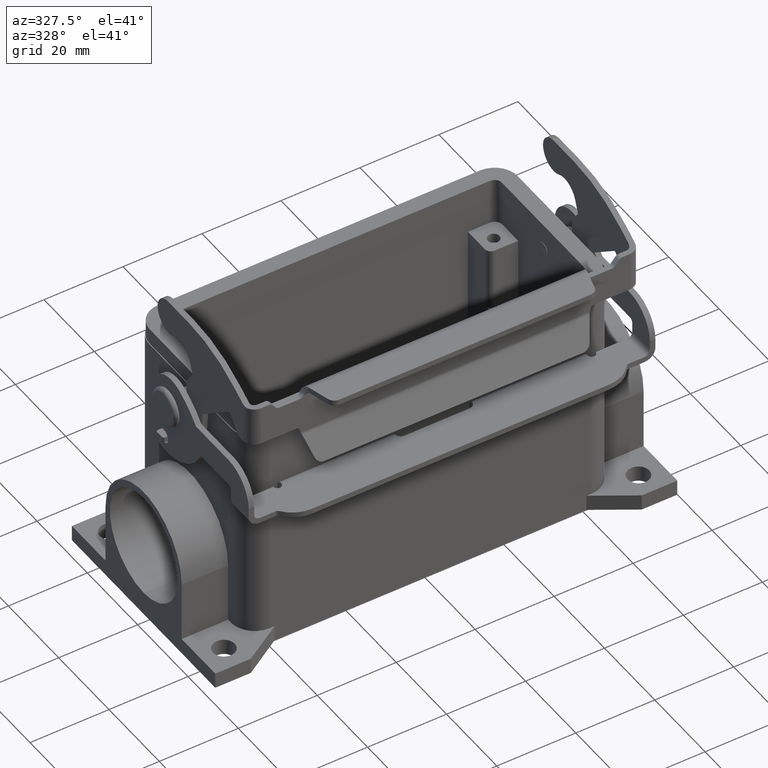
[diagram: clean part render]
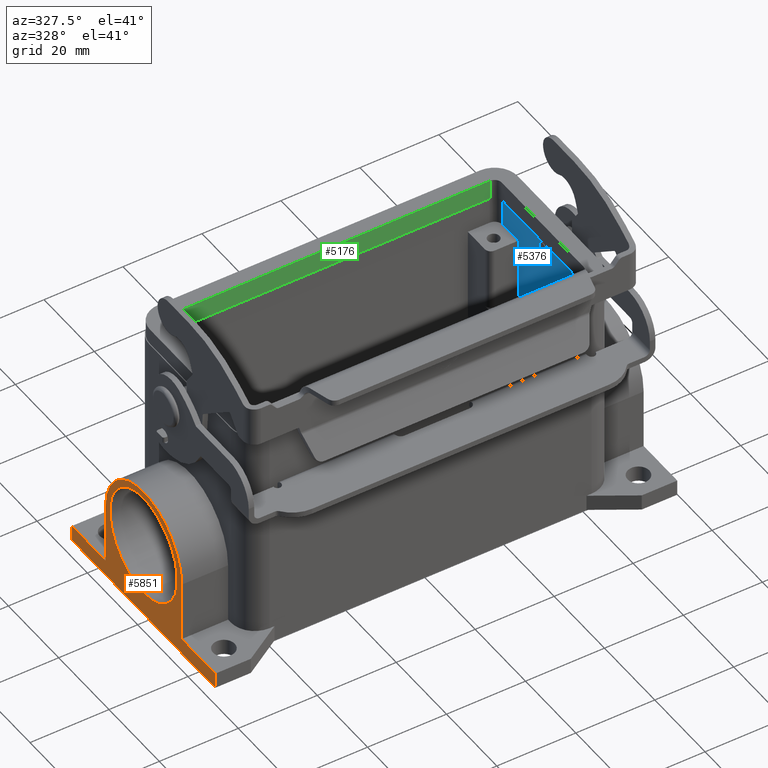
[diagram: same view with three faces highlighted in distinct colors, each labeled with its STEP entity id]
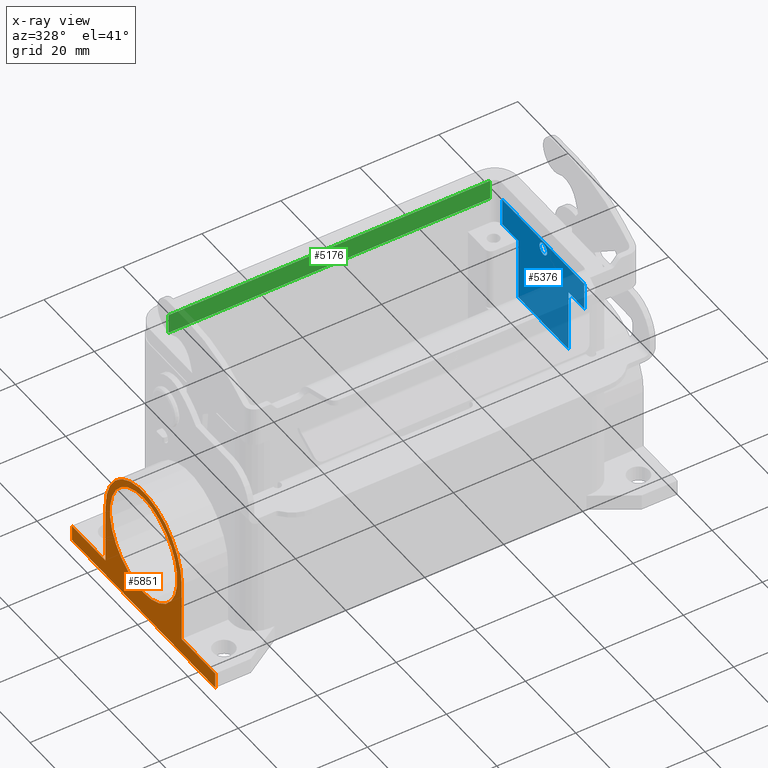
[diagram: x-ray of the same camera — body ghosted, the three highlighted faces saturated]
A machine part, auxiliary view with three faces highlighted in distinct colors.
The next image is the same camera in x-ray (body ghosted, the three faces saturated) — at least one of them is partly hidden behind the body in this view.
Their STEP definitions:

[orange] entity #5851 — the highlighted planar face has unit normal (-1, 0, 0).
#1890=CARTESIAN_POINT('',(-58.500000000000007,0.0,-23.219999999999970));
#1891=VERTEX_POINT('',#1890);
#1907=CARTESIAN_POINT('',(-58.500000000000007,-1.639748E-015,-50.000000000000036));
#1908=VERTEX_POINT('',#1907);
#1915=CARTESIAN_POINT('',(-58.500000000000007,0.0,-36.610000000000007));
#1916=DIRECTION('',(1.0,0.0,0.0));
#1917=DIRECTION('',(0.0,0.0,1.0));
#1918=AXIS2_PLACEMENT_3D('',#1915,#1916,#1917);
#1919=CIRCLE('',#1918,13.390000000000031);
#1920=EDGE_CURVE('',#1891,#1908,#1919,.T.);
#2065=CARTESIAN_POINT('',(-58.500000000000007,0.0,-36.610000000000007));
#2066=DIRECTION('',(1.0,0.0,0.0));
#2067=DIRECTION('',(0.0,0.0,1.0));
#2068=AXIS2_PLACEMENT_3D('',#2065,#2066,#2067);
#2069=CIRCLE('',#2068,13.390000000000031);
#2070=EDGE_CURVE('',#1908,#1891,#2069,.T.);
#2262=CARTESIAN_POINT('',(-58.500000000000007,-15.140000000000001,-52.000000000000014));
#2263=VERTEX_POINT('',#2262);
#2278=CARTESIAN_POINT('',(-58.500000000000007,-15.139999999999997,-36.610000000000007));
#2279=VERTEX_POINT('',#2278);
#2286=CARTESIAN_POINT('',(-58.500000000000007,-15.139999999999997,-36.610000000000007));
#2287=DIRECTION('',(0.0,0.0,-1.0));
#2288=VECTOR('',#2287,15.390000000000008);
#2289=LINE('',#2286,#2288);
#2290=EDGE_CURVE('',#2279,#2263,#2289,.T.);
#2330=CARTESIAN_POINT('',(-58.500000000000007,15.140000000000002,-36.609999999999999));
#2331=VERTEX_POINT('',#2330);
#2338=CARTESIAN_POINT('',(-58.500000000000007,1.126356E-015,-36.610000000000007));
#2339=DIRECTION('',(1.0,0.0,0.0));
#2340=DIRECTION('',(0.0,1.0,0.0));
#2341=AXIS2_PLACEMENT_3D('',#2338,#2339,#2340);
#2342=CIRCLE('',#2341,15.140000000000002);
#2343=EDGE_CURVE('',#2331,#2279,#2342,.T.);
#2354=CARTESIAN_POINT('',(-58.500000000000007,15.140000000000008,-52.000000000000014));
#2355=VERTEX_POINT('',#2354);
#2364=CARTESIAN_POINT('',(-58.500000000000007,15.140000000000008,-52.000000000000014));
#2365=DIRECTION('',(0.0,0.0,1.0));
#2366=VECTOR('',#2365,15.390000000000015);
#2367=LINE('',#2364,#2366);
#2368=EDGE_CURVE('',#2355,#2331,#2367,.T.);
#2385=CARTESIAN_POINT('',(-58.500000000000007,-28.500000000000000,-56.000000000000007));
#2386=VERTEX_POINT('',#2385);
#2387=CARTESIAN_POINT('',(-58.500000000000007,28.500000000000000,-56.000000000000007));
#2388=VERTEX_POINT('',#2387);
#2389=CARTESIAN_POINT('',(-58.500000000000007,-28.500000000000000,-56.000000000000007));
#2390=DIRECTION('',(0.0,1.0,0.0));
#2391=VECTOR('',#2390,57.0);
#2392=LINE('',#2389,#2391);
#2393=EDGE_CURVE('',#2386,#2388,#2392,.T.);
#2563=CARTESIAN_POINT('',(-58.500000000000007,28.500000000000000,-52.000000000000014));
#2564=VERTEX_POINT('',#2563);
#2571=CARTESIAN_POINT('',(-58.500000000000007,15.140000000000008,-52.000000000000014));
#2572=DIRECTION('',(0.0,1.0,0.0));
#2573=VECTOR('',#2572,13.359999999999992);
#2574=LINE('',#2571,#2573);
#2575=EDGE_CURVE('',#2355,#2564,#2574,.T.);
#2596=CARTESIAN_POINT('',(-58.500000000000007,-28.500000000000000,-52.000000000000014));
#2597=VERTEX_POINT('',#2596);
#2598=CARTESIAN_POINT('',(-58.500000000000007,-28.500000000000000,-52.000000000000014));
#2599=DIRECTION('',(0.0,1.0,0.0));
#2600=VECTOR('',#2599,13.359999999999999);
#2601=LINE('',#2598,#2600);
#2602=EDGE_CURVE('',#2597,#2263,#2601,.T.);
#5667=CARTESIAN_POINT('',(-58.500000000000007,28.500000000000000,-56.000000000000007));
#5668=DIRECTION('',(0.0,0.0,1.0));
#5669=VECTOR('',#5668,3.999999999999993);
#5670=LINE('',#5667,#5669);
#5671=EDGE_CURVE('',#2388,#2564,#5670,.T.);
#5821=CARTESIAN_POINT('',(-58.500000000000007,-28.500000000000000,-56.000000000000007));
#5822=DIRECTION('',(0.0,0.0,1.0));
#5823=VECTOR('',#5822,3.999999999999993);
#5824=LINE('',#5821,#5823);
#5825=EDGE_CURVE('',#2386,#2597,#5824,.T.);
#5832=CARTESIAN_POINT('',(-58.500000000000007,-28.500000000000000,-56.000000000000007));
#5833=DIRECTION('',(-1.0,0.0,0.0));
#5834=DIRECTION('',(0.0,0.0,1.0));
#5835=AXIS2_PLACEMENT_3D('',#5832,#5833,#5834);
#5836=PLANE('',#5835);
#5837=ORIENTED_EDGE('',*,*,#2393,.F.);
#5838=ORIENTED_EDGE('',*,*,#5825,.T.);
#5839=ORIENTED_EDGE('',*,*,#2602,.T.);
#5840=ORIENTED_EDGE('',*,*,#2290,.F.);
#5841=ORIENTED_EDGE('',*,*,#2343,.F.);
#5842=ORIENTED_EDGE('',*,*,#2368,.F.);
#5843=ORIENTED_EDGE('',*,*,#2575,.T.);
#5844=ORIENTED_EDGE('',*,*,#5671,.F.);
#5845=EDGE_LOOP('',(#5837,#5838,#5839,#5840,#5841,#5842,#5843,#5844));
#5846=FACE_OUTER_BOUND('',#5845,.T.);
#5847=ORIENTED_EDGE('',*,*,#1920,.T.);
#5848=ORIENTED_EDGE('',*,*,#2070,.T.);
#5849=EDGE_LOOP('',(#5847,#5848));
#5850=FACE_BOUND('',#5849,.T.);
#5851=ADVANCED_FACE('',(#5846,#5850),#5836,.T.);

[blue] entity #5376 — the highlighted planar face has unit normal (1, 0, 0).
#767=CARTESIAN_POINT('',(42.750000000000014,-1.836910E-016,-1.500000000000020));
#768=VERTEX_POINT('',#767);
#784=CARTESIAN_POINT('',(42.750000000000014,-1.836910E-016,1.499999999999985));
#785=VERTEX_POINT('',#784);
#792=CARTESIAN_POINT('',(42.750000000000014,0.0,-1.752430E-014));
#793=DIRECTION('',(1.0,0.0,0.0));
#794=DIRECTION('',(0.0,0.0,-1.0));
#795=AXIS2_PLACEMENT_3D('',#792,#793,#794);
#796=CIRCLE('',#795,1.500000000000003);
#797=EDGE_CURVE('',#768,#785,#796,.T.);
#3077=CARTESIAN_POINT('',(42.750000000000000,-9.999999999999998,-21.000000000000007));
#3078=VERTEX_POINT('',#3077);
#3087=CARTESIAN_POINT('',(42.750000000000000,10.0,-21.000000000000007));
#3088=VERTEX_POINT('',#3087);
#3089=CARTESIAN_POINT('',(42.750000000000000,10.0,-21.000000000000007));
#3090=DIRECTION('',(0.0,-1.0,0.0));
#3091=VECTOR('',#3090,20.0);
#3092=LINE('',#3089,#3091);
#3093=EDGE_CURVE('',#3088,#3078,#3092,.T.);
#3278=CARTESIAN_POINT('',(42.750000000000014,-9.999999999999998,-5.0));
#3279=VERTEX_POINT('',#3278);
#3286=CARTESIAN_POINT('',(42.750000000000000,-9.999999999999998,-21.000000000000007));
#3287=DIRECTION('',(0.0,0.0,1.0));
#3288=VECTOR('',#3287,16.000000000000007);
#3289=LINE('',#3286,#3288);
#3290=EDGE_CURVE('',#3078,#3279,#3289,.T.);
#3789=CARTESIAN_POINT('',(42.750000000000014,-16.250000000000000,-5.0));
#3790=VERTEX_POINT('',#3789);
#3798=CARTESIAN_POINT('',(42.750000000000014,-9.999999999999998,-5.0));
#3799=DIRECTION('',(0.0,-1.0,0.0));
#3800=VECTOR('',#3799,6.250000000000002);
#3801=LINE('',#3798,#3800);
#3802=EDGE_CURVE('',#3279,#3790,#3801,.T.);
#3957=CARTESIAN_POINT('',(42.750000000000014,10.0,-5.0));
#3958=VERTEX_POINT('',#3957);
#3959=CARTESIAN_POINT('',(42.750000000000014,10.0,-5.0));
#3960=DIRECTION('',(0.0,0.0,-1.0));
#3961=VECTOR('',#3960,16.000000000000007);
#3962=LINE('',#3959,#3961);
#3963=EDGE_CURVE('',#3958,#3088,#3962,.T.);
#4016=CARTESIAN_POINT('',(42.750000000000014,16.250000000000000,-5.0));
#4017=VERTEX_POINT('',#4016);
#4018=CARTESIAN_POINT('',(42.750000000000014,16.250000000000000,-5.0));
#4019=DIRECTION('',(0.0,-1.0,0.0));
#4020=VECTOR('',#4019,6.250000000000000);
#4021=LINE('',#4018,#4020);
#4022=EDGE_CURVE('',#4017,#3958,#4021,.T.);
#4102=CARTESIAN_POINT('',(42.750000000000014,16.250000000000000,2.000000000000002));
#4103=VERTEX_POINT('',#4102);
#4104=CARTESIAN_POINT('',(42.750000000000014,16.250000000000000,2.000000000000002));
#4105=DIRECTION('',(0.0,0.0,-1.0));
#4106=VECTOR('',#4105,7.000000000000002);
#4107=LINE('',#4104,#4106);
#4108=EDGE_CURVE('',#4103,#4017,#4107,.T.);
#4559=CARTESIAN_POINT('',(42.750000000000014,0.0,-1.752430E-014));
#4560=DIRECTION('',(1.0,0.0,0.0));
#4561=DIRECTION('',(0.0,0.0,-1.0));
#4562=AXIS2_PLACEMENT_3D('',#4559,#4560,#4561);
#4563=CIRCLE('',#4562,1.500000000000003);
#4564=EDGE_CURVE('',#785,#768,#4563,.T.);
#4892=CARTESIAN_POINT('',(42.750000000000014,-16.250000000000000,2.000000000000002));
#4893=VERTEX_POINT('',#4892);
#4894=CARTESIAN_POINT('',(42.750000000000014,-16.250000000000000,2.000000000000002));
#4895=DIRECTION('',(0.0,1.0,0.0));
#4896=VECTOR('',#4895,32.500000000000000);
#4897=LINE('',#4894,#4896);
#4898=EDGE_CURVE('',#4893,#4103,#4897,.T.);
#5348=CARTESIAN_POINT('',(42.750000000000014,-16.250000000000000,2.000000000000002));
#5349=DIRECTION('',(0.0,0.0,-1.0));
#5350=VECTOR('',#5349,7.000000000000002);
#5351=LINE('',#5348,#5350);
#5352=EDGE_CURVE('',#4893,#3790,#5351,.T.);
#5357=CARTESIAN_POINT('',(42.750000000000014,-16.250000000000000,7.000000000000002));
#5358=DIRECTION('',(1.0,0.0,0.0));
#5359=DIRECTION('',(0.0,0.0,-1.0));
#5360=AXIS2_PLACEMENT_3D('',#5357,#5358,#5359);
#5361=PLANE('',#5360);
#5362=ORIENTED_EDGE('',*,*,#3093,.T.);
#5363=ORIENTED_EDGE('',*,*,#3290,.T.);
#5364=ORIENTED_EDGE('',*,*,#3802,.T.);
#5365=ORIENTED_EDGE('',*,*,#5352,.F.);
#5366=ORIENTED_EDGE('',*,*,#4898,.T.);
#5367=ORIENTED_EDGE('',*,*,#4108,.T.);
#5368=ORIENTED_EDGE('',*,*,#4022,.T.);
#5369=ORIENTED_EDGE('',*,*,#3963,.T.);
#5370=EDGE_LOOP('',(#5362,#5363,#5364,#5365,#5366,#5367,#5368,#5369));
#5371=FACE_OUTER_BOUND('',#5370,.T.);
#5372=ORIENTED_EDGE('',*,*,#4564,.T.);
#5373=ORIENTED_EDGE('',*,*,#797,.T.);
#5374=EDGE_LOOP('',(#5372,#5373));
#5375=FACE_BOUND('',#5374,.T.);
#5376=ADVANCED_FACE('',(#5371,#5375),#5361,.F.);

[green] entity #5176 — the highlighted planar face has unit normal (0, 1, 0).
#4972=CARTESIAN_POINT('',(40.750000000000014,18.050000000000001,2.000000000000003));
#4973=VERTEX_POINT('',#4972);
#4981=CARTESIAN_POINT('',(-40.750000000000014,18.050000000000001,2.000000000000003));
#4982=VERTEX_POINT('',#4981);
#4983=CARTESIAN_POINT('',(40.750000000000014,18.050000000000001,2.000000000000003));
#4984=DIRECTION('',(-1.0,0.0,0.0));
#4985=VECTOR('',#4984,81.500000000000028);
#4986=LINE('',#4983,#4985);
#4987=EDGE_CURVE('',#4973,#4982,#4986,.T.);
#5135=CARTESIAN_POINT('',(40.750000000000014,18.050000000000001,7.000000000000002));
#5136=VERTEX_POINT('',#5135);
#5144=CARTESIAN_POINT('',(40.750000000000014,18.050000000000001,7.000000000000002));
#5145=DIRECTION('',(0.0,0.0,-1.0));
#5146=VECTOR('',#5145,4.999999999999999);
#5147=LINE('',#5144,#5146);
#5148=EDGE_CURVE('',#5136,#4973,#5147,.T.);
#5153=CARTESIAN_POINT('',(40.750000000000014,18.050000000000001,7.000000000000002));
#5154=DIRECTION('',(0.0,1.0,0.0));
#5155=DIRECTION('',(0.0,0.0,1.0));
#5156=AXIS2_PLACEMENT_3D('',#5153,#5154,#5155);
#5157=PLANE('',#5156);
#5158=ORIENTED_EDGE('',*,*,#4987,.F.);
#5159=ORIENTED_EDGE('',*,*,#5148,.F.);
#5160=CARTESIAN_POINT('',(-40.750000000000014,18.050000000000001,7.000000000000002));
#5161=VERTEX_POINT('',#5160);
#5162=CARTESIAN_POINT('',(-40.750000000000014,18.050000000000001,7.000000000000002));
#5163=DIRECTION('',(1.0,0.0,0.0));
#5164=VECTOR('',#5163,81.500000000000028);
#5165=LINE('',#5162,#5164);
#5166=EDGE_CURVE('',#5161,#5136,#5165,.T.);
#5167=ORIENTED_EDGE('',*,*,#5166,.F.);
#5168=CARTESIAN_POINT('',(-40.750000000000014,18.050000000000001,7.000000000000002));
#5169=DIRECTION('',(0.0,0.0,-1.0));
#5170=VECTOR('',#5169,4.999999999999999);
#5171=LINE('',#5168,#5170);
#5172=EDGE_CURVE('',#5161,#4982,#5171,.T.);
#5173=ORIENTED_EDGE('',*,*,#5172,.T.);
#5174=EDGE_LOOP('',(#5158,#5159,#5167,#5173));
#5175=FACE_OUTER_BOUND('',#5174,.T.);
#5176=ADVANCED_FACE('',(#5175),#5157,.F.);